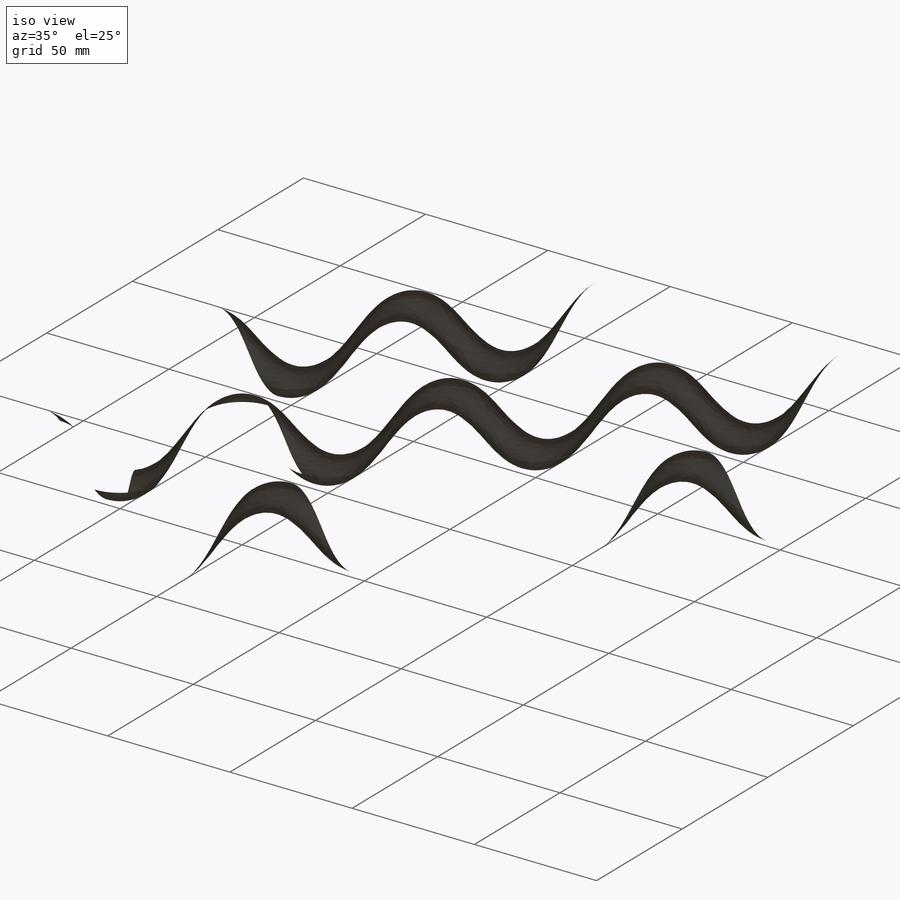
[diagram: iso view]
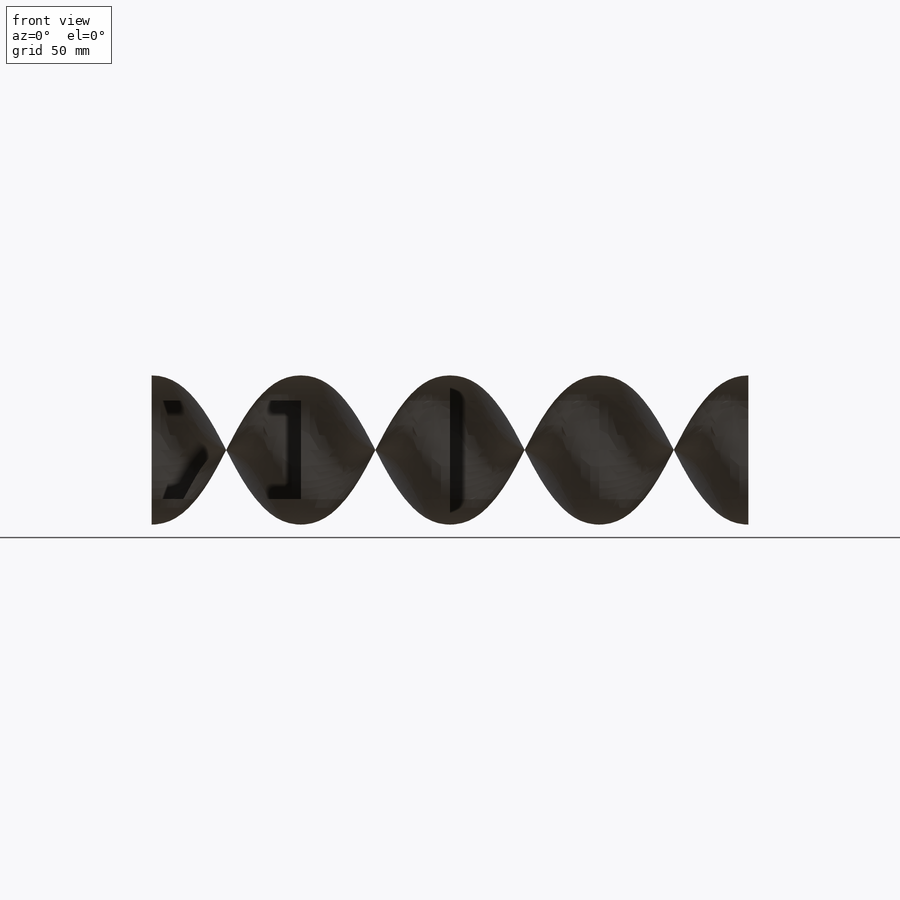
[diagram: front view]
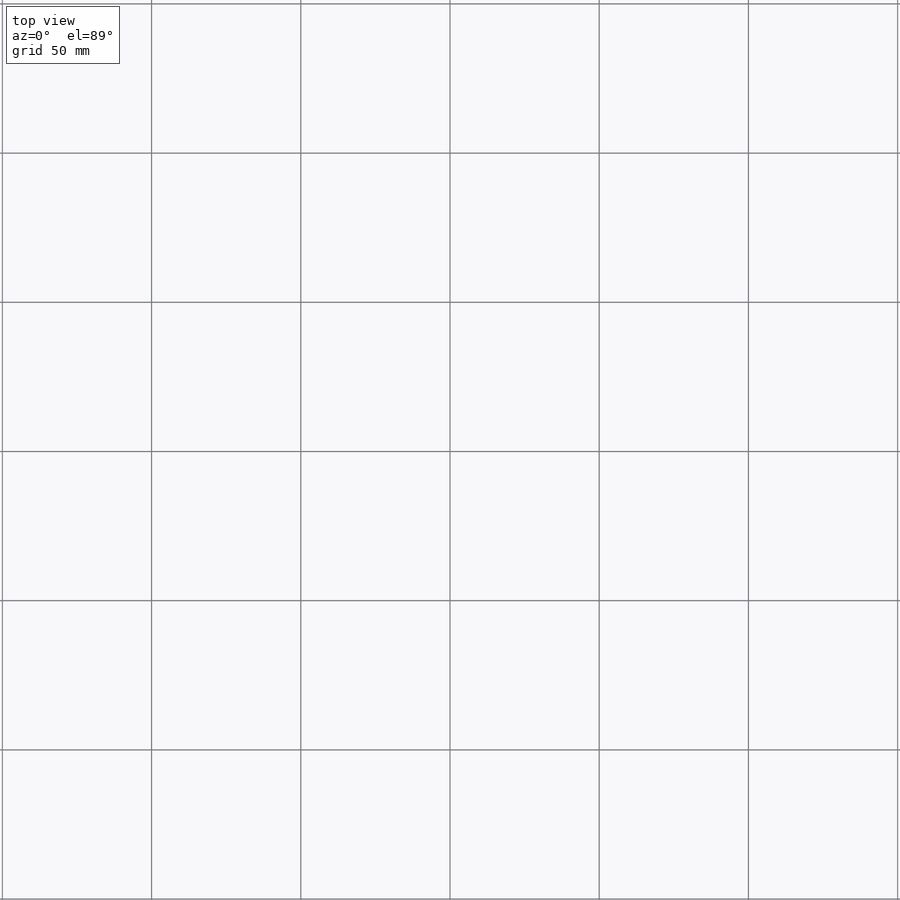
[diagram: top view]
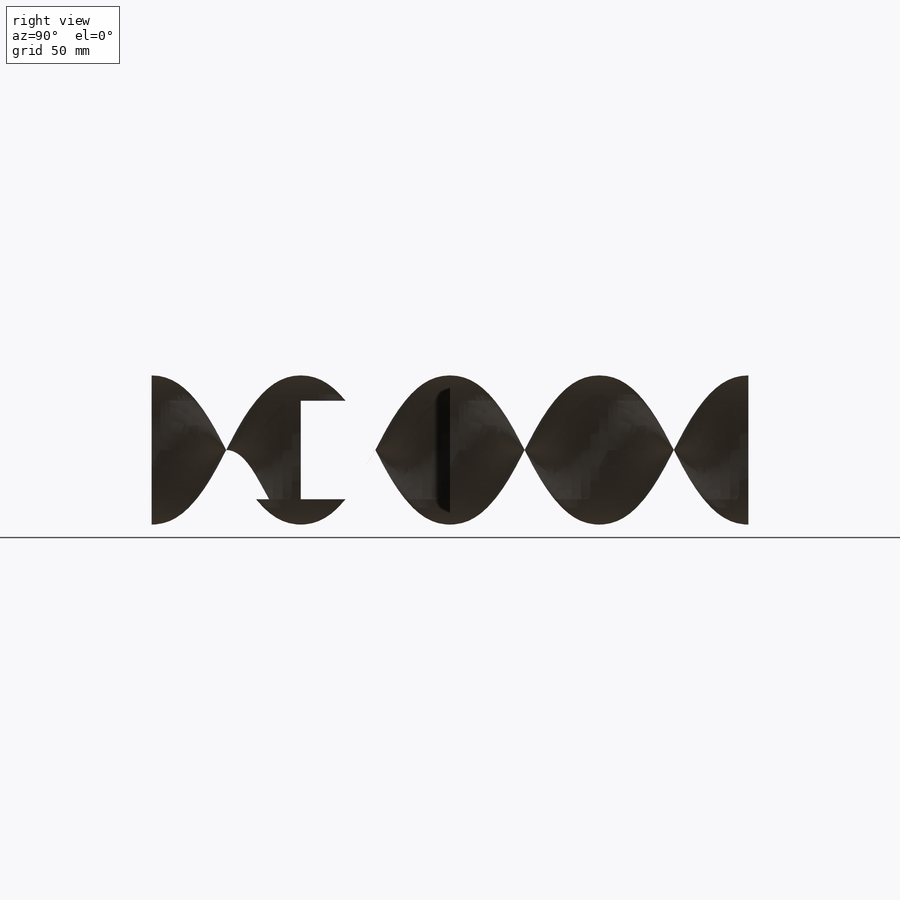
[diagram: right view]
SOLIDWORKS PART (.sldprt)
format: sldprt  version: not decoded by parser v0  size: 1,543,680 bytes
history: native  units: mm
features: sketch x7, plane x5, mirror x4, material x1, delete_body x1, pattern_linear x1, surface_op x1 + 3 further entries (+10 scaffold rows collapsed)
feature tree (33):
  scaffold x10  (default folders/planes/origin — collapsed)
  material  "1.0037 (S235JR)"
  plane  "Ebene vorne"
  plane  "Ebene oben"
  plane  "Ebene rechts"
  sketch  "Skizze Seite"  dims[c1.D1=50.0mm c1.D2=25.0mm c1.D3=25.0mm c1.D4=20.0mm c2.D3=16.5mm]
  sketch  "Skizze Segment"  dims[D1=50.0mm]
  plane  "Ebene1"
  plane  "Ebene2"
  sketch  "Skizze3"  dims[D1=45.0deg]
  sketch  "Skizze4"  dims[D1=45.0deg]
  sketch  "SkizzeUebergang1"
  sketch  "SkizzeUebergang2"
  sketch  "SkizzeUebergang3"
  "RiFl1"
  "RiFl2"
  "RiFl3"
  delete_body  "RiFl loeschen"
  mirror  "Spiegeln1"
  mirror  "Spiegeln2"
  mirror  "Spiegeln3"
  mirror  "Spiegeln4"
  pattern_linear  "Lineares Muster1"  Count1=2 Count2=2 Spacing1=100mm Spacing2=100mm
  surface_op  "Oberfläche-Zusammenfügen2"
decode coverage: 5 of 14 modeling features carry decoded parameters; 3 rows unclassified (native names shown)
note: suppression state not decoded; provenance and decode notes live in map.json
